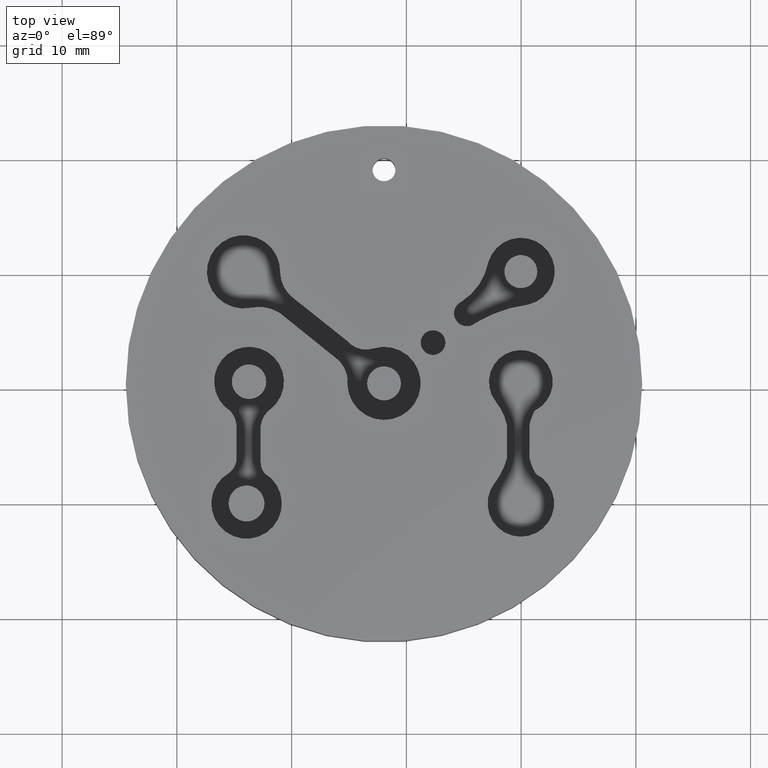
[diagram: clean part render]
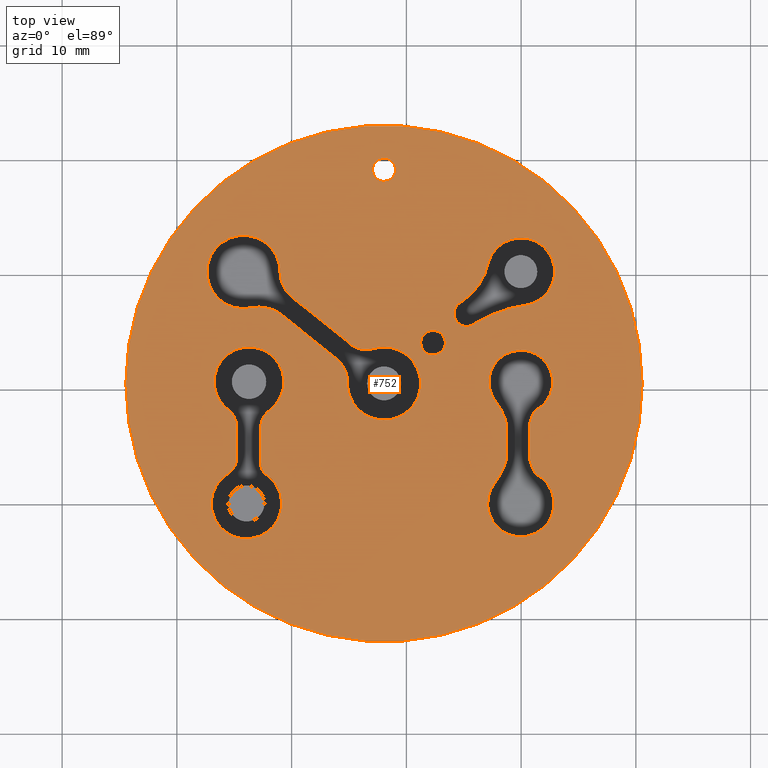
[diagram: same view with one face highlighted and labeled with its STEP entity id]
A machine part, top view. The second image highlights one B-rep face of the part: STEP entity #752.
In plain terms, the highlighted planar face has unit normal (0, 0, 1).
Its self-contained STEP definition (entity closure, byte-faithful):
#19=FACE_BOUND('',#134,.T.);
#20=FACE_BOUND('',#135,.T.);
#21=FACE_BOUND('',#136,.T.);
#22=FACE_BOUND('',#137,.T.);
#23=FACE_BOUND('',#138,.T.);
#24=FACE_BOUND('',#139,.T.);
#37=PLANE('',#870);
#83=FACE_OUTER_BOUND('',#133,.T.);
#133=EDGE_LOOP('',(#646));
#134=EDGE_LOOP('',(#647));
#135=EDGE_LOOP('',(#648));
#136=EDGE_LOOP('',(#649,#650,#651,#652));
#137=EDGE_LOOP('',(#653,#654,#655,#656,#657,#658,#659,#660));
#138=EDGE_LOOP('',(#661,#662,#663,#664,#665,#666,#667,#668));
#139=EDGE_LOOP('',(#669,#670,#671,#672,#673,#674,#675,#676));
#157=LINE('',#1201,#204);
#163=LINE('',#1225,#210);
#169=LINE('',#1250,#216);
#175=LINE('',#1274,#222);
#183=LINE('',#1311,#230);
#189=LINE('',#1335,#236);
#204=VECTOR('',#955,48.);
#210=VECTOR('',#981,48.);
#216=VECTOR('',#1009,48.);
#222=VECTOR('',#1035,48.);
#230=VECTOR('',#1077,48.);
#236=VECTOR('',#1103,48.);
#240=CIRCLE('',#773,1.);
#242=CIRCLE('',#776,22.5);
#245=CIRCLE('',#780,1.07672015491203);
#248=CIRCLE('',#786,11.7069667488273);
#250=CIRCLE('',#789,2.94888572910964);
#252=CIRCLE('',#792,5.27787053740473);
#254=CIRCLE('',#795,1.12692869761494);
#258=CIRCLE('',#802,3.31496552583742);
#260=CIRCLE('',#806,2.6146646522035);
#262=CIRCLE('',#809,3.18865941362887);
#264=CIRCLE('',#812,2.18194427932069);
#266=CIRCLE('',#816,2.87217014798354);
#268=CIRCLE('',#819,3.19426913772284);
#270=CIRCLE('',#823,5.03169616243129);
#272=CIRCLE('',#827,5.85208532061931);
#274=CIRCLE('',#830,2.8965525042398);
#276=CIRCLE('',#833,5.85208532061931);
#278=CIRCLE('',#837,5.03169616243127);
#280=CIRCLE('',#840,2.77997540433799);
#286=CIRCLE('',#850,2.13081616101524);
#288=CIRCLE('',#854,1.62980474225353);
#290=CIRCLE('',#857,3.06980999880907);
#292=CIRCLE('',#860,1.46515175611475);
#294=CIRCLE('',#864,2.06240244404573);
#296=CIRCLE('',#867,3.04095983531042);
#298=VERTEX_POINT('',#1135);
#300=VERTEX_POINT('',#1141);
#303=VERTEX_POINT('',#1149);
#306=VERTEX_POINT('',#1160);
#307=VERTEX_POINT('',#1161);
#310=VERTEX_POINT('',#1169);
#312=VERTEX_POINT('',#1175);
#316=VERTEX_POINT('',#1191);
#317=VERTEX_POINT('',#1192);
#320=VERTEX_POINT('',#1200);
#322=VERTEX_POINT('',#1206);
#324=VERTEX_POINT('',#1212);
#326=VERTEX_POINT('',#1218);
#328=VERTEX_POINT('',#1224);
#330=VERTEX_POINT('',#1230);
#332=VERTEX_POINT('',#1240);
#333=VERTEX_POINT('',#1241);
#336=VERTEX_POINT('',#1249);
#338=VERTEX_POINT('',#1255);
#340=VERTEX_POINT('',#1261);
#342=VERTEX_POINT('',#1267);
#344=VERTEX_POINT('',#1273);
#346=VERTEX_POINT('',#1279);
#352=VERTEX_POINT('',#1301);
#353=VERTEX_POINT('',#1302);
#356=VERTEX_POINT('',#1310);
#358=VERTEX_POINT('',#1316);
#360=VERTEX_POINT('',#1322);
#362=VERTEX_POINT('',#1328);
#364=VERTEX_POINT('',#1334);
#366=VERTEX_POINT('',#1340);
#368=EDGE_CURVE('',#298,#298,#240,.T.);
#371=EDGE_CURVE('',#300,#300,#242,.T.);
#376=EDGE_CURVE('',#303,#303,#245,.T.);
#380=EDGE_CURVE('',#306,#307,#248,.T.);
#384=EDGE_CURVE('',#310,#306,#250,.T.);
#387=EDGE_CURVE('',#312,#310,#252,.T.);
#390=EDGE_CURVE('',#307,#312,#254,.T.);
#395=EDGE_CURVE('',#316,#317,#258,.T.);
#399=EDGE_CURVE('',#320,#316,#157,.T.);
#402=EDGE_CURVE('',#322,#320,#260,.T.);
#405=EDGE_CURVE('',#324,#322,#262,.T.);
#408=EDGE_CURVE('',#326,#324,#264,.T.);
#411=EDGE_CURVE('',#328,#326,#163,.T.);
#414=EDGE_CURVE('',#330,#328,#266,.T.);
#417=EDGE_CURVE('',#317,#330,#268,.T.);
#419=EDGE_CURVE('',#332,#333,#270,.T.);
#423=EDGE_CURVE('',#336,#332,#169,.T.);
#426=EDGE_CURVE('',#338,#336,#272,.T.);
#429=EDGE_CURVE('',#340,#338,#274,.T.);
#432=EDGE_CURVE('',#342,#340,#276,.T.);
#435=EDGE_CURVE('',#344,#342,#175,.T.);
#438=EDGE_CURVE('',#346,#344,#278,.T.);
#441=EDGE_CURVE('',#333,#346,#280,.T.);
#449=EDGE_CURVE('',#352,#353,#286,.T.);
#453=EDGE_CURVE('',#356,#352,#183,.T.);
#456=EDGE_CURVE('',#358,#356,#288,.T.);
#459=EDGE_CURVE('',#360,#358,#290,.T.);
#462=EDGE_CURVE('',#362,#360,#292,.T.);
#465=EDGE_CURVE('',#364,#362,#189,.T.);
#468=EDGE_CURVE('',#366,#364,#294,.T.);
#471=EDGE_CURVE('',#353,#366,#296,.T.);
#646=ORIENTED_EDGE('',*,*,#371,.T.);
#647=ORIENTED_EDGE('',*,*,#368,.T.);
#648=ORIENTED_EDGE('',*,*,#376,.T.);
#649=ORIENTED_EDGE('',*,*,#380,.T.);
#650=ORIENTED_EDGE('',*,*,#390,.T.);
#651=ORIENTED_EDGE('',*,*,#387,.T.);
#652=ORIENTED_EDGE('',*,*,#384,.T.);
#653=ORIENTED_EDGE('',*,*,#395,.T.);
#654=ORIENTED_EDGE('',*,*,#417,.T.);
#655=ORIENTED_EDGE('',*,*,#414,.T.);
#656=ORIENTED_EDGE('',*,*,#411,.T.);
#657=ORIENTED_EDGE('',*,*,#408,.T.);
#658=ORIENTED_EDGE('',*,*,#405,.T.);
#659=ORIENTED_EDGE('',*,*,#402,.T.);
#660=ORIENTED_EDGE('',*,*,#399,.T.);
#661=ORIENTED_EDGE('',*,*,#419,.T.);
#662=ORIENTED_EDGE('',*,*,#441,.T.);
#663=ORIENTED_EDGE('',*,*,#438,.T.);
#664=ORIENTED_EDGE('',*,*,#435,.T.);
#665=ORIENTED_EDGE('',*,*,#432,.T.);
#666=ORIENTED_EDGE('',*,*,#429,.T.);
#667=ORIENTED_EDGE('',*,*,#426,.T.);
#668=ORIENTED_EDGE('',*,*,#423,.T.);
#669=ORIENTED_EDGE('',*,*,#449,.T.);
#670=ORIENTED_EDGE('',*,*,#471,.T.);
#671=ORIENTED_EDGE('',*,*,#468,.T.);
#672=ORIENTED_EDGE('',*,*,#465,.T.);
#673=ORIENTED_EDGE('',*,*,#462,.T.);
#674=ORIENTED_EDGE('',*,*,#459,.T.);
#675=ORIENTED_EDGE('',*,*,#456,.T.);
#676=ORIENTED_EDGE('',*,*,#453,.T.);
#752=ADVANCED_FACE('',(#83,#19,#20,#21,#22,#23,#24),#37,.T.);
#773=AXIS2_PLACEMENT_3D('',#1136,#880,#881);
#776=AXIS2_PLACEMENT_3D('',#1142,#887,#888);
#780=AXIS2_PLACEMENT_3D('',#1151,#897,#898);
#786=AXIS2_PLACEMENT_3D('',#1162,#910,#911);
#789=AXIS2_PLACEMENT_3D('',#1170,#918,#919);
#792=AXIS2_PLACEMENT_3D('',#1176,#925,#926);
#795=AXIS2_PLACEMENT_3D('',#1181,#932,#933);
#802=AXIS2_PLACEMENT_3D('',#1193,#947,#948);
#806=AXIS2_PLACEMENT_3D('',#1207,#960,#961);
#809=AXIS2_PLACEMENT_3D('',#1213,#967,#968);
#812=AXIS2_PLACEMENT_3D('',#1219,#974,#975);
#816=AXIS2_PLACEMENT_3D('',#1231,#986,#987);
#819=AXIS2_PLACEMENT_3D('',#1236,#993,#994);
#823=AXIS2_PLACEMENT_3D('',#1242,#1001,#1002);
#827=AXIS2_PLACEMENT_3D('',#1256,#1014,#1015);
#830=AXIS2_PLACEMENT_3D('',#1262,#1021,#1022);
#833=AXIS2_PLACEMENT_3D('',#1268,#1028,#1029);
#837=AXIS2_PLACEMENT_3D('',#1280,#1040,#1041);
#840=AXIS2_PLACEMENT_3D('',#1285,#1047,#1048);
#850=AXIS2_PLACEMENT_3D('',#1303,#1069,#1070);
#854=AXIS2_PLACEMENT_3D('',#1317,#1082,#1083);
#857=AXIS2_PLACEMENT_3D('',#1323,#1089,#1090);
#860=AXIS2_PLACEMENT_3D('',#1329,#1096,#1097);
#864=AXIS2_PLACEMENT_3D('',#1341,#1108,#1109);
#867=AXIS2_PLACEMENT_3D('',#1346,#1115,#1116);
#870=AXIS2_PLACEMENT_3D('',#1349,#1121,#1122);
#880=DIRECTION('center_axis',(0.,0.,-1.));
#881=DIRECTION('ref_axis',(-1.,0.,0.));
#887=DIRECTION('center_axis',(0.,0.,1.));
#888=DIRECTION('ref_axis',(-1.,0.,0.));
#897=DIRECTION('center_axis',(0.,0.,-1.));
#898=DIRECTION('ref_axis',(1.,0.,0.));
#910=DIRECTION('center_axis',(0.,0.,1.));
#911=DIRECTION('ref_axis',(-0.124510143279333,0.992218334954843,0.));
#918=DIRECTION('center_axis',(0.,0.,-1.));
#919=DIRECTION('ref_axis',(1.,0.,0.));
#925=DIRECTION('center_axis',(0.,0.,1.));
#926=DIRECTION('ref_axis',(0.539234003567845,-0.842155976880883,0.));
#932=DIRECTION('center_axis',(0.,0.,-1.));
#933=DIRECTION('ref_axis',(1.,0.,0.));
#947=DIRECTION('center_axis',(0.,0.,1.));
#948=DIRECTION('ref_axis',(0.555172612579208,0.831735156309974,0.));
#955=DIRECTION('',(-0.779213412579506,0.626758691727687,0.));
#960=DIRECTION('center_axis',(0.,0.,1.));
#961=DIRECTION('ref_axis',(0.992768827455693,-0.120041889489665,0.));
#967=DIRECTION('center_axis',(0.,0.,-1.));
#968=DIRECTION('ref_axis',(1.,0.,0.));
#974=DIRECTION('center_axis',(0.,0.,1.));
#975=DIRECTION('ref_axis',(-0.761212597785034,-0.64850241400735,0.));
#981=DIRECTION('',(0.78260102788148,-0.622523598877064,0.));
#986=DIRECTION('center_axis',(0.,0.,1.));
#987=DIRECTION('ref_axis',(-0.998871869121451,-0.0474867252800114,0.));
#993=DIRECTION('center_axis',(0.,0.,-1.));
#994=DIRECTION('ref_axis',(1.,0.,0.));
#1001=DIRECTION('center_axis',(0.,0.,1.));
#1002=DIRECTION('ref_axis',(0.983295412724528,0.182016843492297,0.));
#1009=DIRECTION('',(0.,1.,0.));
#1014=DIRECTION('center_axis',(0.,0.,1.));
#1015=DIRECTION('ref_axis',(0.787176128399285,-0.616728256915728,0.));
#1021=DIRECTION('center_axis',(0.,0.,-1.));
#1022=DIRECTION('ref_axis',(1.,0.,0.));
#1028=DIRECTION('center_axis',(0.,0.,1.));
#1029=DIRECTION('ref_axis',(-0.975911992343988,-0.218164578241261,0.));
#1035=DIRECTION('',(0.,-1.,0.));
#1040=DIRECTION('center_axis',(0.,0.,1.));
#1041=DIRECTION('ref_axis',(-0.783858142208383,0.620939943065046,0.));
#1047=DIRECTION('center_axis',(0.,0.,-1.));
#1048=DIRECTION('ref_axis',(1.,0.,0.));
#1069=DIRECTION('center_axis',(0.,0.,1.));
#1070=DIRECTION('ref_axis',(1.,-1.00038109635168E-14,0.));
#1077=DIRECTION('',(0.,1.,0.));
#1082=DIRECTION('center_axis',(0.,0.,1.));
#1083=DIRECTION('ref_axis',(0.590901468492534,-0.806743735354274,0.));
#1089=DIRECTION('center_axis',(0.,0.,-1.));
#1090=DIRECTION('ref_axis',(1.,0.,0.));
#1096=DIRECTION('center_axis',(0.,0.,1.));
#1097=DIRECTION('ref_axis',(-1.,-1.45488561057518E-14,0.));
#1103=DIRECTION('',(0.,-1.,0.));
#1108=DIRECTION('center_axis',(0.,0.,1.));
#1109=DIRECTION('ref_axis',(-0.600894769771138,0.799328140166285,0.));
#1115=DIRECTION('center_axis',(0.,0.,-1.));
#1116=DIRECTION('ref_axis',(1.,0.,0.));
#1121=DIRECTION('center_axis',(0.,0.,1.));
#1122=DIRECTION('ref_axis',(1.,0.,0.));
#1135=CARTESIAN_POINT('',(29.0503773553956,9.10774675819782,0.));
#1136=CARTESIAN_POINT('Origin',(28.0503773553956,9.10774675819782,0.));
#1141=CARTESIAN_POINT('',(50.5503773553956,-9.5249996215105,0.));
#1142=CARTESIAN_POINT('Origin',(28.0503773553956,-9.5249996215105,0.));
#1149=CARTESIAN_POINT('',(31.2440321399253,-5.96899998486041,0.));
#1151=CARTESIAN_POINT('Origin',(32.3207522948373,-5.96899998486041,0.));
#1160=CARTESIAN_POINT('',(40.6371599248641,-2.65309696208917,0.));
#1161=CARTESIAN_POINT('',(36.0395454949488,-4.24963213356057,0.));
#1162=CARTESIAN_POINT('Origin',(42.094796032127,-14.2689640169823,0.));
#1169=CARTESIAN_POINT('',(37.1467516286958,1.06050037902391,0.));
#1170=CARTESIAN_POINT('Origin',(39.9733504780566,0.220104051010259,0.));
#1175=CARTESIAN_POINT('',(34.8081830761113,-2.39631663560971,0.));
#1176=CARTESIAN_POINT('Origin',(31.9621758159138,2.0484735826692,0.));
#1181=CARTESIAN_POINT('Origin',(35.2743787223362,-3.42229417383804,0.));
#1191=CARTESIAN_POINT('',(18.9965150875621,-3.41587185843771,0.));
#1192=CARTESIAN_POINT('',(16.4694430679608,-2.92998373340149,0.));
#1193=CARTESIAN_POINT('Origin',(17.1561370159729,-6.17304522823227,0.));
#1200=CARTESIAN_POINT('',(23.9106814482049,-7.36857137490609,0.));
#1201=CARTESIAN_POINT('',(25.6940152593898,-8.80299222594346,0.));
#1206=CARTESIAN_POINT('',(24.8676752124411,-9.71982242653293,0.));
#1207=CARTESIAN_POINT('Origin',(22.2719176514832,-9.40595314130058,0.));
#1212=CARTESIAN_POINT('',(27.1137484796632,-6.4770043450594,0.));
#1213=CARTESIAN_POINT('Origin',(28.0503773553956,-9.5249996215105,0.));
#1218=CARTESIAN_POINT('',(24.8119061734205,-5.80631021102671,0.));
#1219=CARTESIAN_POINT('Origin',(26.4728296465044,-4.39131407865771,0.));
#1224=CARTESIAN_POINT('',(20.0804594297657,-2.04265906591063,0.));
#1225=CARTESIAN_POINT('',(24.3437566058992,-5.43391847730377,0.));
#1230=CARTESIAN_POINT('',(18.9995231627245,0.0687142893770432,0.));
#1231=CARTESIAN_POINT('Origin',(21.8684531268757,0.205104244151788,0.));
#1236=CARTESIAN_POINT('Origin',(15.8077513344872,0.194999366402637,0.));
#1240=CARTESIAN_POINT('',(38.7541962248372,-13.1248504090982,0.));
#1241=CARTESIAN_POINT('',(37.7942441222272,-11.1264737625374,0.));
#1242=CARTESIAN_POINT('Origin',(33.8501081161868,-14.2508548911581,0.));
#1249=CARTESIAN_POINT('',(38.7541962248372,-16.0562323128533,0.));
#1250=CARTESIAN_POINT('',(38.7541962248372,-12.7906159671819,0.));
#1255=CARTESIAN_POINT('',(37.6932534920639,-18.207430091563,0.));
#1256=CARTESIAN_POINT('Origin',(33.0866316263165,-14.5982837124553,0.));
#1261=CARTESIAN_POINT('',(41.2530484775428,-17.395279849974,0.));
#1262=CARTESIAN_POINT('Origin',(39.9733504780566,-19.9938158685677,0.));
#1267=CARTESIAN_POINT('',(40.7258841753524,-16.0562323128532,0.));
#1268=CARTESIAN_POINT('Origin',(46.3934487738732,-14.5982837124553,0.));
#1273=CARTESIAN_POINT('',(40.7258841753524,-13.1248504090982,0.));
#1274=CARTESIAN_POINT('',(40.7258841753524,-11.3249250153044,0.));
#1279=CARTESIAN_POINT('',(41.1782865229008,-11.9055489078318,0.));
#1280=CARTESIAN_POINT('Origin',(45.6299722840029,-14.2508548911581,0.));
#1285=CARTESIAN_POINT('Origin',(39.9733504780566,-9.40027599324556,0.));
#1301=CARTESIAN_POINT('',(15.2075045354951,-13.3591897071421,0.));
#1302=CARTESIAN_POINT('',(14.6892125288688,-11.9662994158571,0.));
#1303=CARTESIAN_POINT('Origin',(13.0766883744798,-13.3591897071421,0.));
#1310=CARTESIAN_POINT('',(15.2075045354951,-16.0141805740185,0.));
#1311=CARTESIAN_POINT('',(15.2075045354951,-12.7695900977645,0.));
#1316=CARTESIAN_POINT('',(14.5407538087953,-17.3290153396823,0.));
#1317=CARTESIAN_POINT('Origin',(13.5776997932416,-16.0141805740185,0.));
#1322=CARTESIAN_POINT('',(17.6205915327347,-17.3474791773954,0.));
#1323=CARTESIAN_POINT('Origin',(16.0647523553956,-19.9938158685677,0.));
#1328=CARTESIAN_POINT('',(17.3030010231126,-16.4365604905773,0.));
#1329=CARTESIAN_POINT('Origin',(18.7681527792273,-16.4365604905772,0.));
#1334=CARTESIAN_POINT('',(17.3030010231126,-13.2074759433206,0.));
#1335=CARTESIAN_POINT('',(17.3030010231126,-11.3662377824155,0.));
#1340=CARTESIAN_POINT('',(18.1110647232172,-11.8076555352475,0.));
#1341=CARTESIAN_POINT('Origin',(19.3503515650075,-13.456191845121,0.));
#1346=CARTESIAN_POINT('Origin',(16.2837678630951,-9.37693076576849,0.));
#1349=CARTESIAN_POINT('Origin',(28.0503773553956,-9.5249996215105,0.));